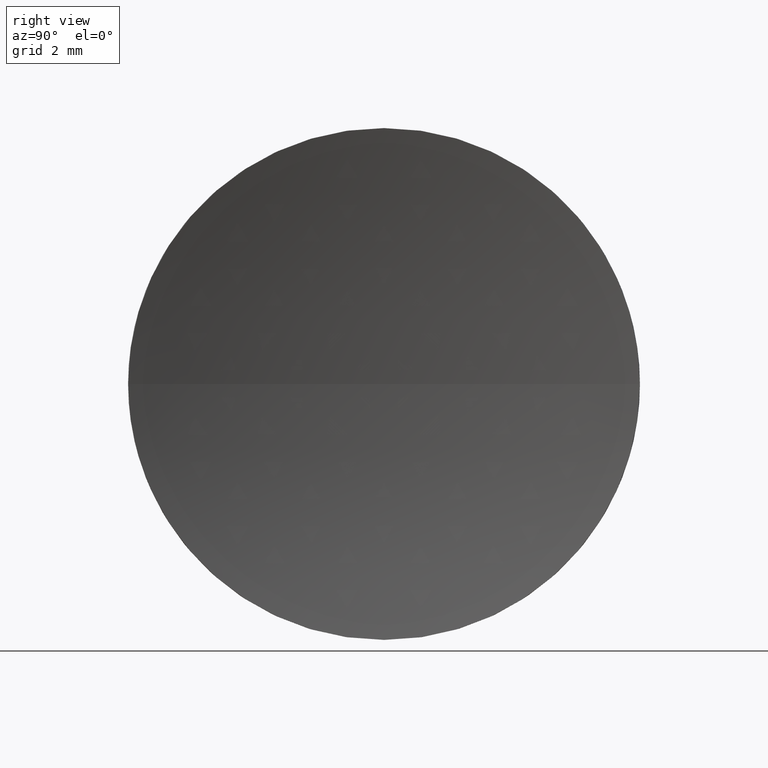
[diagram: clean part render]
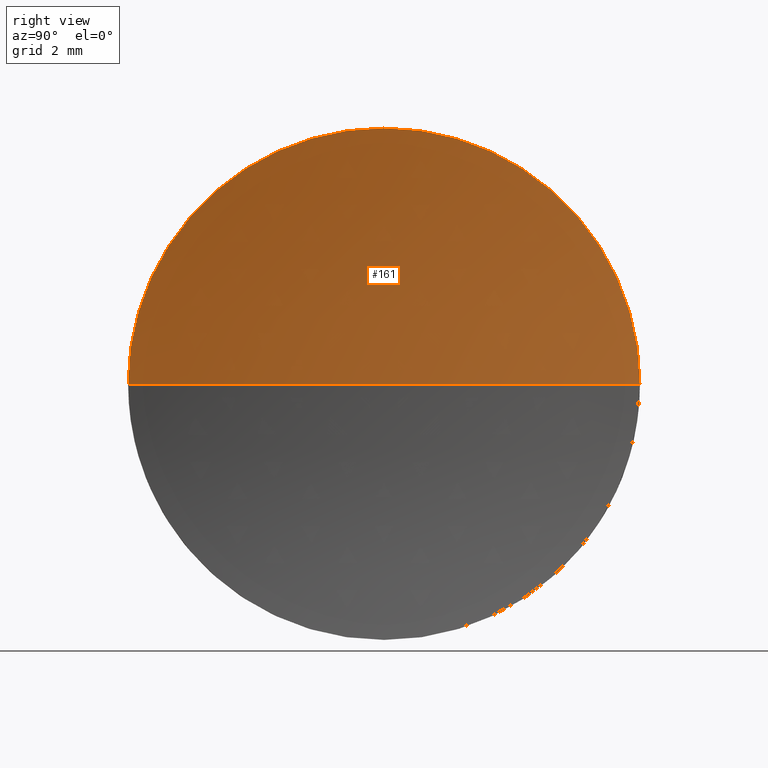
[diagram: same view with one face highlighted and labeled with its STEP entity id]
A machine part, right view. The second image highlights one B-rep face of the part: STEP entity #161.
In plain terms, the highlighted spherical surface has radius 22.92 mm.
Its self-contained STEP definition (entity closure, byte-faithful):
#2 = ORIENTED_EDGE ( 'NONE', *, *, #66, .F. ) ;
#5 = VERTEX_POINT ( 'NONE', #135 ) ;
#9 = CARTESIAN_POINT ( 'NONE',  ( 49.75373410206150700, 28.47759563463748100, 0.0000000000000000000 ) ) ;
#12 = DIRECTION ( 'NONE',  ( 0.0000000000000000000, 1.000000000000000000, 0.0000000000000000000 ) ) ;
#23 = DIRECTION ( 'NONE',  ( 0.0000000000000000000, 0.0000000000000000000, 1.000000000000000000 ) ) ;
#30 = VERTEX_POINT ( 'NONE', #59 ) ;
#39 = ORIENTED_EDGE ( 'NONE', *, *, #126, .F. ) ;
#40 = AXIS2_PLACEMENT_3D ( 'NONE', #50, #174, #12 ) ;
#46 = CIRCLE ( 'NONE', #168, 4.999999999999997300 ) ;
#47 = EDGE_LOOP ( 'NONE', ( #163, #99, #39, #2 ) ) ;
#48 = DIRECTION ( 'NONE',  ( -1.000000000000000000, -0.0000000000000000000, -0.0000000000000000000 ) ) ;
#50 = CARTESIAN_POINT ( 'NONE',  ( 72.12171121220716000, 28.47759563463747400, 0.0000000000000000000 ) ) ;
#53 = CIRCLE ( 'NONE', #183, 22.91999999999999800 ) ;
#55 = DIRECTION ( 'NONE',  ( 0.0000000000000000000, 0.0000000000000000000, 1.000000000000000000 ) ) ;
#57 = CARTESIAN_POINT ( 'NONE',  ( 49.20171121220716500, 28.47759563463747400, 0.0000000000000000000 ) ) ;
#59 = CARTESIAN_POINT ( 'NONE',  ( 49.75373410206150700, 33.47759563463747400, 0.0000000000000000000 ) ) ;
#66 = EDGE_CURVE ( 'NONE', #129, #30, #46, .T. ) ;
#70 = CARTESIAN_POINT ( 'NONE',  ( 72.12171121220716000, 28.47759563463747400, 0.0000000000000000000 ) ) ;
#73 = VERTEX_POINT ( 'NONE', #57 ) ;
#89 = DIRECTION ( 'NONE',  ( 0.0000000000000000000, 1.224646799147353200E-016, -1.000000000000000000 ) ) ;
#93 = CARTESIAN_POINT ( 'NONE',  ( 72.12171121220716000, 28.47759563463747400, 0.0000000000000000000 ) ) ;
#99 = ORIENTED_EDGE ( 'NONE', *, *, #117, .T. ) ;
#100 = CARTESIAN_POINT ( 'NONE',  ( 49.75373410206150700, 28.47759563463748100, 4.999999999999997300 ) ) ;
#102 = AXIS2_PLACEMENT_3D ( 'NONE', #93, #23, #112 ) ;
#104 = EDGE_CURVE ( 'NONE', #5, #129, #179, .T. ) ;
#108 = FACE_OUTER_BOUND ( 'NONE', #47, .T. ) ;
#112 = DIRECTION ( 'NONE',  ( 1.000000000000000000, 0.0000000000000000000, 0.0000000000000000000 ) ) ;
#117 = EDGE_CURVE ( 'NONE', #5, #73, #53, .T. ) ;
#125 = CIRCLE ( 'NONE', #102, 22.91999999999999500 ) ;
#126 = EDGE_CURVE ( 'NONE', #30, #73, #125, .T. ) ;
#129 = VERTEX_POINT ( 'NONE', #100 ) ;
#133 = DIRECTION ( 'NONE',  ( -1.000000000000000000, -0.0000000000000000000, -0.0000000000000000000 ) ) ;
#135 = CARTESIAN_POINT ( 'NONE',  ( 49.75373410206150700, 23.47759563463748100, -6.123233995736758400E-016 ) ) ;
#143 = SPHERICAL_SURFACE ( 'NONE', #40, 22.91999999999999500 ) ;
#147 = CARTESIAN_POINT ( 'NONE',  ( 49.75373410206150700, 28.47759563463748100, 0.0000000000000000000 ) ) ;
#149 = DIRECTION ( 'NONE',  ( 0.0000000000000000000, 1.000000000000000000, 1.224646799147353000E-016 ) ) ;
#161 = ADVANCED_FACE ( 'NONE', ( #108 ), #143, .F. ) ;
#163 = ORIENTED_EDGE ( 'NONE', *, *, #104, .F. ) ;
#165 = DIRECTION ( 'NONE',  ( 0.0000000000000000000, 0.0000000000000000000, 1.000000000000000000 ) ) ;
#168 = AXIS2_PLACEMENT_3D ( 'NONE', #9, #48, #165 ) ;
#174 = DIRECTION ( 'NONE',  ( 0.0000000000000000000, 0.0000000000000000000, -1.000000000000000000 ) ) ;
#176 = AXIS2_PLACEMENT_3D ( 'NONE', #147, #133, #55 ) ;
#179 = CIRCLE ( 'NONE', #176, 4.999999999999997300 ) ;
#183 = AXIS2_PLACEMENT_3D ( 'NONE', #70, #89, #149 ) ;